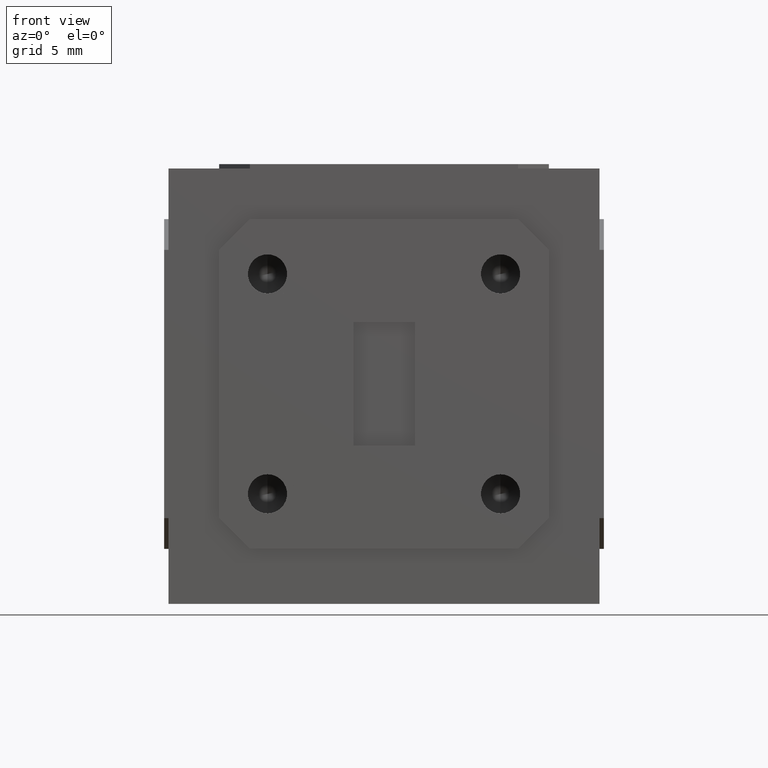
[diagram: clean part render]
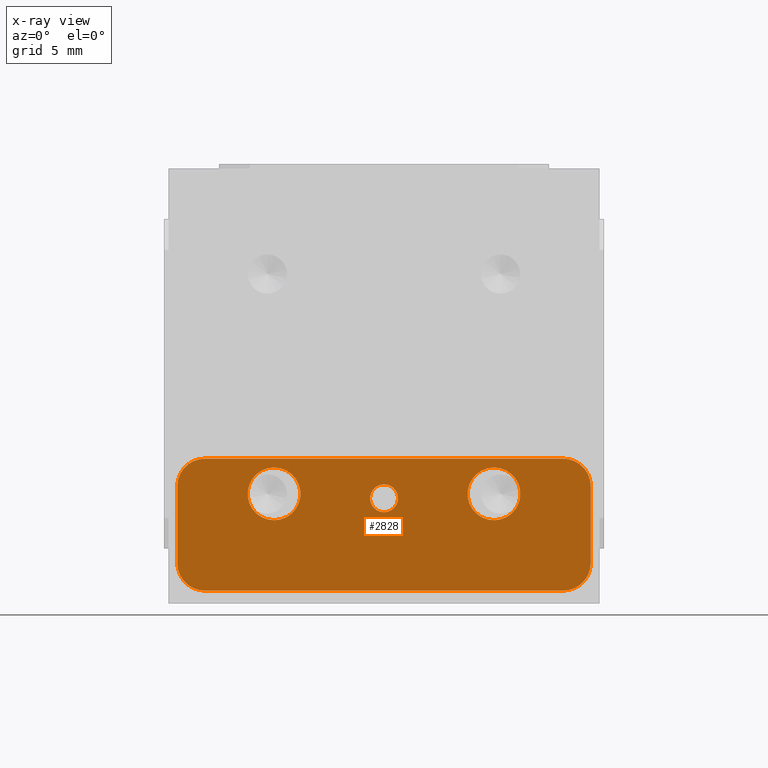
[diagram: x-ray — body ghosted, one internal face saturated and labeled with its STEP entity id]
A machine part, front view, then the same camera in x-ray: the body is ghosted and one INTERNAL B-rep face — a face not visible from any outside direction — is saturated and labeled: STEP entity #2828.
In plain terms, the highlighted planar face has unit normal (-0, -1, 0).
Its self-contained STEP definition (entity closure, byte-faithful):
#170 = CARTESIAN_POINT ( 'NONE',  ( 0.2500000000000000000, -0.4349999999999999978, -0.2499999999999999167 ) ) ;
#173 = CIRCLE ( 'NONE', #1634, 0.06250000000000001388 ) ;
#228 = DIRECTION ( 'NONE',  ( -7.450599229762822751E-32, -1.000000000000000000, 9.466600490908429049E-32 ) ) ;
#264 = CARTESIAN_POINT ( 'NONE',  ( -0.2500000000000000555, -0.4349999999999999978, -0.1899999999999999745 ) ) ;
#305 = EDGE_LOOP ( 'NONE', ( #8019, #3485 ) ) ;
#326 = DIRECTION ( 'NONE',  ( 0.000000000000000000, 0.000000000000000000, 1.000000000000000000 ) ) ;
#351 = EDGE_CURVE ( 'NONE', #5116, #6114, #173, .T. ) ;
#375 = FACE_BOUND ( 'NONE', #5694, .T. ) ;
#380 = CARTESIAN_POINT ( 'NONE',  ( 0.4699999999999999734, -0.4349999999999999978, -0.4074999999999997513 ) ) ;
#405 = CIRCLE ( 'NONE', #6155, 0.05999999999999994227 ) ;
#558 = VERTEX_POINT ( 'NONE', #8760 ) ;
#598 = DIRECTION ( 'NONE',  ( -1.665334536937735304E-16, 9.466600490908430144E-32, 1.000000000000000000 ) ) ;
#674 = CARTESIAN_POINT ( 'NONE',  ( -0.4074999999999999734, -0.4349999999999999978, -0.2325000000000000400 ) ) ;
#784 = AXIS2_PLACEMENT_3D ( 'NONE', #10759, #1339, #598 ) ;
#835 = EDGE_CURVE ( 'NONE', #3896, #8067, #1613, .T. ) ;
#1052 = CARTESIAN_POINT ( 'NONE',  ( 4.329869796038108190E-17, -0.4349999999999999978, -0.2600000000000000089 ) ) ;
#1094 = CARTESIAN_POINT ( 'NONE',  ( 0.2499999999999999722, -0.4349999999999999978, -0.1899999999999999745 ) ) ;
#1102 = DIRECTION ( 'NONE',  ( 1.000000000000000000, -7.450599229762821656E-32, 3.118445171865534951E-16 ) ) ;
#1320 = CARTESIAN_POINT ( 'NONE',  ( -0.4074999999999999734, -0.4349999999999999978, -0.1700000000000000677 ) ) ;
#1339 = DIRECTION ( 'NONE',  ( -7.450599229762822751E-32, -1.000000000000000000, 9.466600490908429049E-32 ) ) ;
#1518 = ORIENTED_EDGE ( 'NONE', *, *, #7847, .T. ) ;
#1613 = CIRCLE ( 'NONE', #2675, 0.05999999999999994227 ) ;
#1634 = AXIS2_PLACEMENT_3D ( 'NONE', #7560, #5895, #3401 ) ;
#1704 = AXIS2_PLACEMENT_3D ( 'NONE', #4735, #9791, #2049 ) ;
#1722 = VECTOR ( 'NONE', #5382, 39.37007874015748143 ) ;
#1902 = ORIENTED_EDGE ( 'NONE', *, *, #351, .T. ) ;
#1999 = EDGE_CURVE ( 'NONE', #8022, #6709, #2056, .T. ) ;
#2049 = DIRECTION ( 'NONE',  ( 0.000000000000000000, 0.000000000000000000, 1.000000000000000000 ) ) ;
#2056 = CIRCLE ( 'NONE', #1704, 0.05999999999999994227 ) ;
#2291 = CARTESIAN_POINT ( 'NONE',  ( 3.801126080560378305E-17, -0.4349999999999999978, -0.2282500000000000084 ) ) ;
#2321 = CIRCLE ( 'NONE', #10084, 0.05999999999999994227 ) ;
#2331 = EDGE_CURVE ( 'NONE', #9646, #6502, #8859, .T. ) ;
#2526 = AXIS2_PLACEMENT_3D ( 'NONE', #7114, #8039, #326 ) ;
#2645 = ORIENTED_EDGE ( 'NONE', *, *, #9571, .T. ) ;
#2675 = AXIS2_PLACEMENT_3D ( 'NONE', #170, #228, #3659 ) ;
#2776 = EDGE_CURVE ( 'NONE', #7228, #7972, #9998, .T. ) ;
#2828 = ADVANCED_FACE ( 'NONE', ( #8302, #10813, #375, #9985 ), #4872, .T. ) ;
#3072 = DIRECTION ( 'NONE',  ( 0.000000000000000000, 0.000000000000000000, 1.000000000000000000 ) ) ;
#3393 = EDGE_CURVE ( 'NONE', #4275, #558, #9481, .T. ) ;
#3401 = DIRECTION ( 'NONE',  ( 0.000000000000000000, 0.000000000000000000, 1.000000000000000000 ) ) ;
#3485 = ORIENTED_EDGE ( 'NONE', *, *, #835, .F. ) ;
#3489 = DIRECTION ( 'NONE',  ( -1.000000000000000000, 7.450599229762822751E-32, -1.665334536937735304E-16 ) ) ;
#3539 = EDGE_CURVE ( 'NONE', #7972, #7228, #5672, .T. ) ;
#3659 = DIRECTION ( 'NONE',  ( 0.000000000000000000, 0.000000000000000000, 1.000000000000000000 ) ) ;
#3896 = VERTEX_POINT ( 'NONE', #1094 ) ;
#4180 = LINE ( 'NONE', #7651, #8080 ) ;
#4275 = VERTEX_POINT ( 'NONE', #1320 ) ;
#4572 = DIRECTION ( 'NONE',  ( 1.665334536937735550E-16, -9.466600490908432333E-32, -1.000000000000000000 ) ) ;
#4579 = AXIS2_PLACEMENT_3D ( 'NONE', #674, #11143, #4900 ) ;
#4582 = ORIENTED_EDGE ( 'NONE', *, *, #8468, .F. ) ;
#4677 = LINE ( 'NONE', #8161, #7520 ) ;
#4690 = EDGE_CURVE ( 'NONE', #558, #5116, #4677, .T. ) ;
#4735 = CARTESIAN_POINT ( 'NONE',  ( -0.2500000000000000000, -0.4349999999999999978, -0.2499999999999999167 ) ) ;
#4743 = AXIS2_PLACEMENT_3D ( 'NONE', #8137, #9102, #6457 ) ;
#4852 = ORIENTED_EDGE ( 'NONE', *, *, #2776, .F. ) ;
#4872 = PLANE ( 'NONE',  #784 ) ;
#4900 = DIRECTION ( 'NONE',  ( 0.000000000000000000, 0.000000000000000000, 1.000000000000000000 ) ) ;
#4906 = EDGE_CURVE ( 'NONE', #5832, #4275, #4180, .T. ) ;
#4981 = CARTESIAN_POINT ( 'NONE',  ( -0.4074999999999999734, -0.4349999999999999978, -0.4700000000000000289 ) ) ;
#5116 = VERTEX_POINT ( 'NONE', #6420 ) ;
#5243 = AXIS2_PLACEMENT_3D ( 'NONE', #7213, #6408, #10763 ) ;
#5382 = DIRECTION ( 'NONE',  ( -1.665334536937735550E-16, 9.466600490908432333E-32, 1.000000000000000000 ) ) ;
#5489 = ORIENTED_EDGE ( 'NONE', *, *, #1999, .F. ) ;
#5672 = CIRCLE ( 'NONE', #6392, 0.03174999999999997269 ) ;
#5694 = EDGE_LOOP ( 'NONE', ( #5489, #4582 ) ) ;
#5832 = VERTEX_POINT ( 'NONE', #11147 ) ;
#5895 = DIRECTION ( 'NONE',  ( -7.450599229762822751E-32, -1.000000000000000000, 9.466600490908429049E-32 ) ) ;
#6068 = EDGE_CURVE ( 'NONE', #8067, #3896, #405, .T. ) ;
#6114 = VERTEX_POINT ( 'NONE', #4981 ) ;
#6155 = AXIS2_PLACEMENT_3D ( 'NONE', #9862, #7375, #8355 ) ;
#6392 = AXIS2_PLACEMENT_3D ( 'NONE', #1052, #8721, #9505 ) ;
#6408 = DIRECTION ( 'NONE',  ( -7.450599229762822751E-32, -1.000000000000000000, 9.466600490908429049E-32 ) ) ;
#6420 = CARTESIAN_POINT ( 'NONE',  ( -0.4699999999999999734, -0.4349999999999999978, -0.4074999999999999734 ) ) ;
#6457 = DIRECTION ( 'NONE',  ( -1.665334536937734318E-16, 0.000000000000000000, 1.000000000000000000 ) ) ;
#6502 = VERTEX_POINT ( 'NONE', #7089 ) ;
#6636 = CARTESIAN_POINT ( 'NONE',  ( -0.2500000000000000000, -0.4349999999999999978, -0.2499999999999999167 ) ) ;
#6709 = VERTEX_POINT ( 'NONE', #264 ) ;
#6818 = EDGE_LOOP ( 'NONE', ( #8606, #4852 ) ) ;
#7049 = VECTOR ( 'NONE', #1102, 39.37007874015748143 ) ;
#7089 = CARTESIAN_POINT ( 'NONE',  ( 0.4699999999999999734, -0.4349999999999999978, -0.2324999999999999845 ) ) ;
#7114 = CARTESIAN_POINT ( 'NONE',  ( 0.4074999999999999734, -0.4349999999999999978, -0.4074999999999997513 ) ) ;
#7140 = ORIENTED_EDGE ( 'NONE', *, *, #4906, .T. ) ;
#7213 = CARTESIAN_POINT ( 'NONE',  ( 0.4074999999999999734, -0.4349999999999999978, -0.2324999999999999012 ) ) ;
#7228 = VERTEX_POINT ( 'NONE', #7524 ) ;
#7375 = DIRECTION ( 'NONE',  ( -7.450599229762822751E-32, -1.000000000000000000, 9.466600490908429049E-32 ) ) ;
#7423 = CIRCLE ( 'NONE', #5243, 0.06250000000000001388 ) ;
#7520 = VECTOR ( 'NONE', #4572, 39.37007874015748143 ) ;
#7524 = CARTESIAN_POINT ( 'NONE',  ( 4.469788152786555218E-17, -0.4349999999999999978, -0.2917499999999999538 ) ) ;
#7560 = CARTESIAN_POINT ( 'NONE',  ( -0.4074999999999999734, -0.4349999999999999978, -0.4075000000000000289 ) ) ;
#7620 = CARTESIAN_POINT ( 'NONE',  ( -0.2500000000000000000, -0.4349999999999999978, -0.3099999999999998868 ) ) ;
#7651 = CARTESIAN_POINT ( 'NONE',  ( 0.4699999999999999178, -0.4349999999999999978, -0.1699999999999999289 ) ) ;
#7742 = CARTESIAN_POINT ( 'NONE',  ( 0.2500000000000000000, -0.4349999999999999978, -0.3099999999999998868 ) ) ;
#7783 = ORIENTED_EDGE ( 'NONE', *, *, #4690, .T. ) ;
#7847 = EDGE_CURVE ( 'NONE', #10252, #9646, #9403, .T. ) ;
#7972 = VERTEX_POINT ( 'NONE', #2291 ) ;
#8019 = ORIENTED_EDGE ( 'NONE', *, *, #6068, .F. ) ;
#8022 = VERTEX_POINT ( 'NONE', #7620 ) ;
#8039 = DIRECTION ( 'NONE',  ( -7.450599229762822751E-32, -1.000000000000000000, 9.466600490908429049E-32 ) ) ;
#8067 = VERTEX_POINT ( 'NONE', #7742 ) ;
#8080 = VECTOR ( 'NONE', #3489, 39.37007874015748143 ) ;
#8137 = CARTESIAN_POINT ( 'NONE',  ( 4.329869796038108190E-17, -0.4349999999999999978, -0.2600000000000000089 ) ) ;
#8140 = LINE ( 'NONE', #8878, #7049 ) ;
#8161 = CARTESIAN_POINT ( 'NONE',  ( -0.4700000000000000289, -0.4349999999999999978, -0.1700000000000000677 ) ) ;
#8302 = FACE_BOUND ( 'NONE', #6818, .T. ) ;
#8355 = DIRECTION ( 'NONE',  ( 0.000000000000000000, 0.000000000000000000, 1.000000000000000000 ) ) ;
#8468 = EDGE_CURVE ( 'NONE', #6709, #8022, #2321, .T. ) ;
#8606 = ORIENTED_EDGE ( 'NONE', *, *, #3539, .F. ) ;
#8721 = DIRECTION ( 'NONE',  ( -7.450599229762822751E-32, -1.000000000000000000, 9.466600490908429049E-32 ) ) ;
#8760 = CARTESIAN_POINT ( 'NONE',  ( -0.4699999999999999734, -0.4349999999999999978, -0.2325000000000000400 ) ) ;
#8859 = LINE ( 'NONE', #9586, #1722 ) ;
#8878 = CARTESIAN_POINT ( 'NONE',  ( -0.4699999999999999734, -0.4349999999999999978, -0.4700000000000000289 ) ) ;
#9102 = DIRECTION ( 'NONE',  ( -7.450599229762822751E-32, -1.000000000000000000, 9.466600490908429049E-32 ) ) ;
#9171 = ORIENTED_EDGE ( 'NONE', *, *, #2331, .T. ) ;
#9403 = CIRCLE ( 'NONE', #2526, 0.06250000000000001388 ) ;
#9481 = CIRCLE ( 'NONE', #4579, 0.06250000000000001388 ) ;
#9505 = DIRECTION ( 'NONE',  ( -1.665334536937734318E-16, 0.000000000000000000, 1.000000000000000000 ) ) ;
#9571 = EDGE_CURVE ( 'NONE', #6502, #5832, #7423, .T. ) ;
#9586 = CARTESIAN_POINT ( 'NONE',  ( 0.4699999999999999734, -0.4349999999999999978, -0.4699999999999997513 ) ) ;
#9645 = EDGE_CURVE ( 'NONE', #6114, #10252, #8140, .T. ) ;
#9646 = VERTEX_POINT ( 'NONE', #380 ) ;
#9791 = DIRECTION ( 'NONE',  ( -7.450599229762822751E-32, -1.000000000000000000, 9.466600490908429049E-32 ) ) ;
#9862 = CARTESIAN_POINT ( 'NONE',  ( 0.2500000000000000000, -0.4349999999999999978, -0.2499999999999999167 ) ) ;
#9863 = ORIENTED_EDGE ( 'NONE', *, *, #3393, .T. ) ;
#9985 = FACE_OUTER_BOUND ( 'NONE', #11014, .T. ) ;
#9998 = CIRCLE ( 'NONE', #4743, 0.03174999999999997269 ) ;
#10084 = AXIS2_PLACEMENT_3D ( 'NONE', #6636, #10814, #3072 ) ;
#10252 = VERTEX_POINT ( 'NONE', #10414 ) ;
#10414 = CARTESIAN_POINT ( 'NONE',  ( 0.4074999999999998623, -0.4349999999999999978, -0.4699999999999997513 ) ) ;
#10759 = CARTESIAN_POINT ( 'NONE',  ( -3.241010664946828324E-32, -0.4349999999999999978, 4.117971213545166702E-32 ) ) ;
#10763 = DIRECTION ( 'NONE',  ( 0.000000000000000000, 0.000000000000000000, 1.000000000000000000 ) ) ;
#10813 = FACE_BOUND ( 'NONE', #305, .T. ) ;
#10814 = DIRECTION ( 'NONE',  ( -7.450599229762822751E-32, -1.000000000000000000, 9.466600490908429049E-32 ) ) ;
#11014 = EDGE_LOOP ( 'NONE', ( #9171, #2645, #7140, #9863, #7783, #1902, #11124, #1518 ) ) ;
#11124 = ORIENTED_EDGE ( 'NONE', *, *, #9645, .T. ) ;
#11143 = DIRECTION ( 'NONE',  ( -7.450599229762822751E-32, -1.000000000000000000, 9.466600490908429049E-32 ) ) ;
#11147 = CARTESIAN_POINT ( 'NONE',  ( 0.4074999999999998623, -0.4349999999999999978, -0.1699999999999999289 ) ) ;